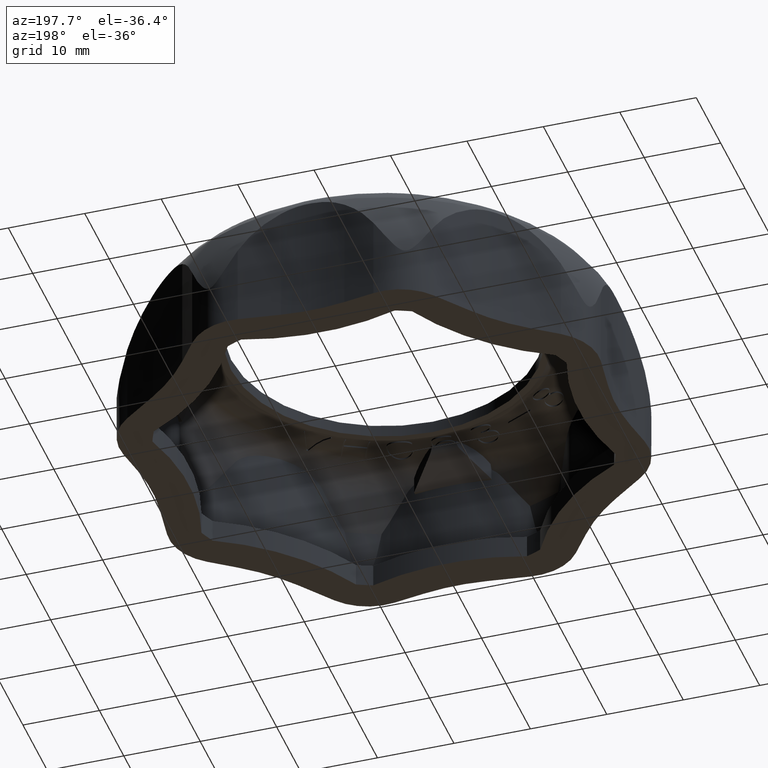
[diagram: clean part render]
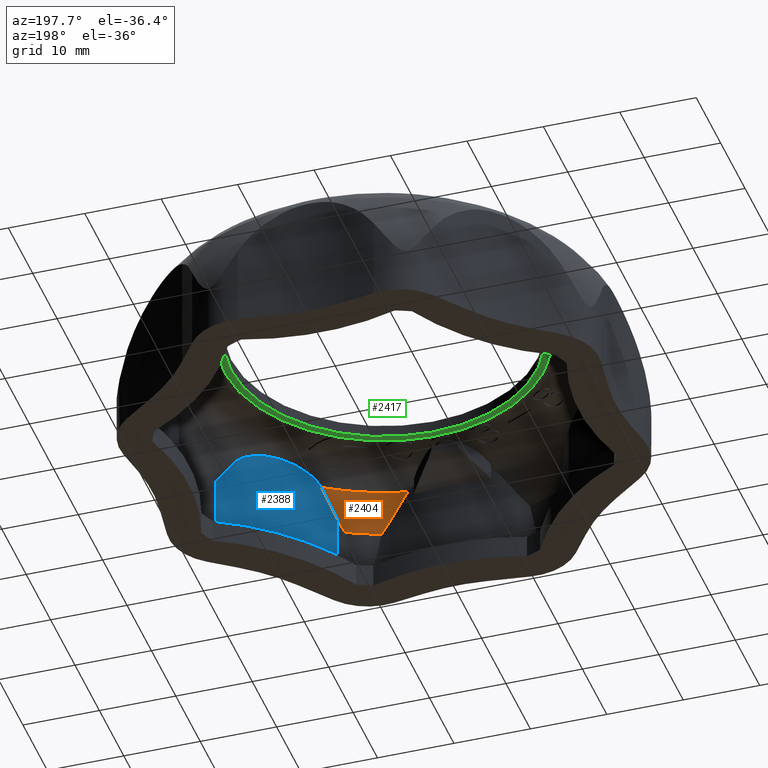
[diagram: same view with three faces highlighted in distinct colors, each labeled with its STEP entity id]
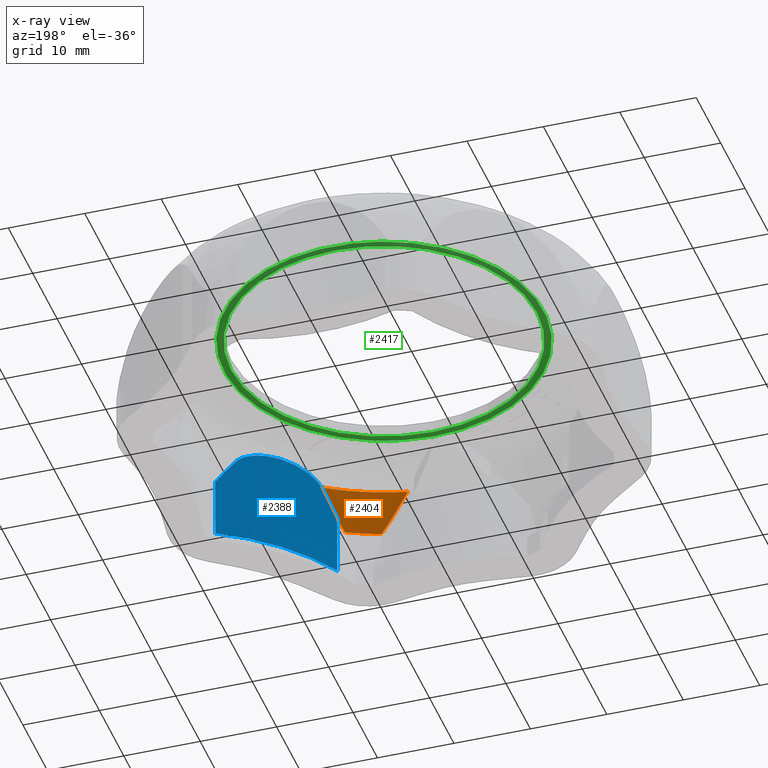
[diagram: x-ray of the same camera — body ghosted, the three highlighted faces saturated]
A machine part, auxiliary view with three faces highlighted in distinct colors.
The next image is the same camera in x-ray (body ghosted, the three faces saturated) — at least one of them is partly hidden behind the body in this view.
Their STEP definitions:

[orange] entity #2404 — the highlighted conical surface has half-angle 19.067 deg.
#2404 = ADVANCED_FACE( '', ( #7112 ), #7113, .F. );
#7112 = FACE_OUTER_BOUND( '', #11847, .T. );
#7113 = CONICAL_SURFACE( '', #11848, 31.0000000000000, 0.332788203392473 );
#11847 = EDGE_LOOP( '', ( #32815, #32816, #32817, #32818, #32819, #32820 ) );
#11848 = AXIS2_PLACEMENT_3D( '', #32821, #32822, #32823 );
#32815 = ORIENTED_EDGE( '', *, *, #39924, .T. );
#32816 = ORIENTED_EDGE( '', *, *, #33492, .T. );
#32817 = ORIENTED_EDGE( '', *, *, #39935, .T. );
#32818 = ORIENTED_EDGE( '', *, *, #39928, .T. );
#32819 = ORIENTED_EDGE( '', *, *, #39977, .F. );
#32820 = ORIENTED_EDGE( '', *, *, #39921, .T. );
#32821 = CARTESIAN_POINT( '', ( 0.000000000000000, 0.000000000000000, 9.49996116138760 ) );
#32822 = DIRECTION( '', ( -2.34318281388423E-017, 5.65694372839885E-017, -1.00000000000000 ) );
#32823 = DIRECTION( '', ( -0.382683432365090, 0.923879532511287, 6.12303176911189E-017 ) );
#33492 = EDGE_CURVE( '', #40832, #40830, #40833, .T. );
#39921 = EDGE_CURVE( '', #51487, #51485, #51488, .T. );
#39924 = EDGE_CURVE( '', #51485, #40832, #51492, .T. );
#39928 = EDGE_CURVE( '', #51498, #51495, #51499, .T. );
#39935 = EDGE_CURVE( '', #40830, #51498, #51511, .T. );
#39977 = EDGE_CURVE( '', #51487, #51495, #51577, .T. );
#40830 = VERTEX_POINT( '', #53919 );
#40832 = VERTEX_POINT( '', #53942 );
#40833 = CIRCLE( '', #53943, 29.2256761474118 );
#51485 = VERTEX_POINT( '', #80695 );
#51487 = VERTEX_POINT( '', #80698 );
#51488 = B_SPLINE_CURVE_WITH_KNOTS( '', 3, ( #80699, #80700, #80701, #80702, #80703, #80704 ), .UNSPECIFIED., .F., .F., ( 4, 2, 4 ), ( 2.74166396177416E-007, 0.000977178982280314, 0.00195408379816445 ), .UNSPECIFIED. );
#51492 = B_SPLINE_CURVE_WITH_KNOTS( '', 3, ( #80725, #80726, #80727, #80728, #80729, #80730 ), .UNSPECIFIED., .F., .F., ( 4, 2, 4 ), ( 4.77719126268167E-007, 0.00221967505390502, 0.00443887238868378 ), .UNSPECIFIED. );
#51495 = VERTEX_POINT( '', #80738 );
#51498 = VERTEX_POINT( '', #80758 );
#51499 = B_SPLINE_CURVE_WITH_KNOTS( '', 3, ( #80759, #80760, #80761, #80762, #80763, #80764 ), .UNSPECIFIED., .F., .F., ( 4, 2, 4 ), ( 4.76181368800909E-007, 0.000977735369371480, 0.00195499455737416 ), .UNSPECIFIED. );
#51511 = B_SPLINE_CURVE_WITH_KNOTS( '', 3, ( #80800, #80801, #80802, #80803, #80804, #80805 ), .UNSPECIFIED., .F., .F., ( 4, 2, 4 ), ( 2.64352324711938E-007, 0.00221910611919886, 0.00443794788607301 ), .UNSPECIFIED. );
#51577 = CIRCLE( '', #81044, 31.0000000000000 );
#53919 = CARTESIAN_POINT( '', ( 15.9889899921919, -24.4641030057265, 14.6333583801573 ) );
#53942 = CARTESIAN_POINT( '', ( 5.99281028186683, -28.6046564600756, 14.6333587349022 ) );
#53943 = AXIS2_PLACEMENT_3D( '', #81397, #81398, #81399 );
#80695 = CARTESIAN_POINT( '', ( 8.53978144138068, -29.2411382262603, 11.0546472186196 ) );
#80698 = CARTESIAN_POINT( '', ( 9.70607708918036, -29.4413326386373, 9.49996116138760 ) );
#80699 = CARTESIAN_POINT( '', ( 9.70607708918048, -29.4413326386372, 9.49996116138768 ) );
#80700 = CARTESIAN_POINT( '', ( 9.47922292302562, -29.4296666076683, 9.73751058986364 ) );
#80701 = CARTESIAN_POINT( '', ( 9.27304488831557, -29.4039861247977, 9.98876598832187 ) );
#80702 = CARTESIAN_POINT( '', ( 8.88761478499548, -29.3348699136893, 10.5091894918414 ) );
#80703 = CARTESIAN_POINT( '', ( 8.70860736771149, -29.2912619150065, 10.7785189436806 ) );
#80704 = CARTESIAN_POINT( '', ( 8.53978144138059, -29.2411382262603, 11.0546472186195 ) );
#80725 = CARTESIAN_POINT( '', ( 8.53978144138059, -29.2411382262603, 11.0546472186195 ) );
#80726 = CARTESIAN_POINT( '', ( 8.15755443070495, -29.1276380778461, 11.6798616485109 ) );
#80727 = CARTESIAN_POINT( '', ( 7.75871130698027, -29.0173923765390, 12.2938292476531 ) );
#80728 = CARTESIAN_POINT( '', ( 6.91530179891717, -28.8046622454202, 13.4906036877899 ) );
#80729 = CARTESIAN_POINT( '', ( 6.47101256302913, -28.7021472575901, 14.0736023397583 ) );
#80730 = CARTESIAN_POINT( '', ( 5.99281028186691, -28.6046564600755, 14.6333587349023 ) );
#80738 = CARTESIAN_POINT( '', ( 13.9549330274702, -27.6813988844280, 9.49996116138760 ) );
#80758 = CARTESIAN_POINT( '', ( 14.6382524279612, -26.7148075337736, 11.0552482217337 ) );
#80759 = CARTESIAN_POINT( '', ( 14.6382524279612, -26.7148075337737, 11.0552482217337 ) );
#80760 = CARTESIAN_POINT( '', ( 14.5543046027241, -26.8696799918379, 10.7790109106490 ) );
#80761 = CARTESIAN_POINT( '', ( 14.4585438454448, -27.0271462973678, 10.5095755642135 ) );
#80762 = CARTESIAN_POINT( '', ( 14.2348189297718, -27.3486707104623, 9.98894991275362 ) );
#80763 = CARTESIAN_POINT( '', ( 14.1071500261428, -27.5126775536838, 9.73759802960910 ) );
#80764 = CARTESIAN_POINT( '', ( 13.9549330274703, -27.6813988844281, 9.49996116138765 ) );
#80800 = CARTESIAN_POINT( '', ( 15.9889897511657, -24.4641033701943, 14.6333587004009 ) );
#80801 = CARTESIAN_POINT( '', ( 15.7198294804467, -24.8711142219835, 14.0736925458682 ) );
#80802 = CARTESIAN_POINT( '', ( 15.4781931002338, -25.2577042869453, 13.4907911428942 ) );
#80803 = CARTESIAN_POINT( '', ( 15.0322945678605, -26.0043969139999, 12.2942185350456 ) );
#80804 = CARTESIAN_POINT( '', ( 14.8282498495235, -26.3643252295236, 11.6803556451684 ) );
#80805 = CARTESIAN_POINT( '', ( 14.6382524279612, -26.7148075337737, 11.0552482217337 ) );
#81044 = AXIS2_PLACEMENT_3D( '', #83703, #83704, #83705 );
#81397 = CARTESIAN_POINT( '', ( 0.000000000000000, 0.000000000000000, 14.6333587349022 ) );
#81398 = DIRECTION( '', ( 2.34318281388423E-017, -5.65694372839885E-017, 1.00000000000000 ) );
#81399 = DIRECTION( '', ( 0.382683432365090, -0.923879532511287, -6.12303176911189E-017 ) );
#83703 = CARTESIAN_POINT( '', ( 0.000000000000000, 0.000000000000000, 9.49996116138760 ) );
#83704 = DIRECTION( '', ( 2.34318281388423E-017, -5.65694372839885E-017, 1.00000000000000 ) );
#83705 = DIRECTION( '', ( 0.382683432365090, -0.923879532511287, -6.12303176911189E-017 ) );

[blue] entity #2388 — the highlighted cylindrical surface (partial cylindrical patch) has radius 30 mm, axis along (0, 0, -1).
#2388 = ADVANCED_FACE( '', ( #7080 ), #7081, .T. );
#7080 = FACE_OUTER_BOUND( '', #11815, .T. );
#7081 = CYLINDRICAL_SURFACE( '', #11816, 30.0000000000000 );
#11815 = EDGE_LOOP( '', ( #32677, #32678, #32679, #32680, #32681, #32682 ) );
#11816 = AXIS2_PLACEMENT_3D( '', #32683, #32684, #32685 );
#32677 = ORIENTED_EDGE( '', *, *, #39929, .T. );
#32678 = ORIENTED_EDGE( '', *, *, #39935, .F. );
#32679 = ORIENTED_EDGE( '', *, *, #33491, .F. );
#32680 = ORIENTED_EDGE( '', *, *, #39936, .F. );
#32681 = ORIENTED_EDGE( '', *, *, #39931, .F. );
#32682 = ORIENTED_EDGE( '', *, *, #39937, .F. );
#32683 = CARTESIAN_POINT( '', ( 41.0121932812772, -41.0121934439948, -89.6687766675985 ) );
#32684 = DIRECTION( '', ( 0.000000000000000, 0.000000000000000, -1.00000000000000 ) );
#32685 = DIRECTION( '', ( -0.879131361803197, 0.476579530292747, 0.000000000000000 ) );
#33491 = EDGE_CURVE( '', #40828, #40830, #40831, .T. );
#39929 = EDGE_CURVE( '', #51500, #51498, #51501, .T. );
#39931 = EDGE_CURVE( '', #51503, #51504, #51505, .T. );
#39935 = EDGE_CURVE( '', #40830, #51498, #51511, .T. );
#39936 = EDGE_CURVE( '', #51504, #40828, #51512, .T. );
#39937 = EDGE_CURVE( '', #51500, #51503, #51513, .F. );
#40828 = VERTEX_POINT( '', #53917 );
#40830 = VERTEX_POINT( '', #53919 );
#40831 = B_SPLINE_CURVE_WITH_KNOTS( '', 3, ( #53920, #53921, #53922, #53923, #53924, #53925, #53926, #53927, #53928, #53929, #53930, #53931, #53932, #53933, #53934, #53935, #53936, #53937, #53938, #53939, #53940, #53941 ), .UNSPECIFIED., .F., .F., ( 4, 2, 2, 2, 2, 2, 2, 2, 2, 2, 4 ), ( 2.58774998028080E-007, 0.000810441572573044, 0.00162062437014806, 0.00324098996529811, 0.00486135556044816, 0.00648172115559821, 0.00810208675074825, 0.00972245234589830, 0.0113428179410483, 0.0121530007386234, 0.0129631835361984 ), .UNSPECIFIED. );
#51498 = VERTEX_POINT( '', #80758 );
#51500 = VERTEX_POINT( '', #80765 );
#51501 = LINE( '', #80766, #80767 );
#51503 = VERTEX_POINT( '', #80769 );
#51504 = VERTEX_POINT( '', #80770 );
#51505 = LINE( '', #80771, #80772 );
#51511 = B_SPLINE_CURVE_WITH_KNOTS( '', 3, ( #80800, #80801, #80802, #80803, #80804, #80805 ), .UNSPECIFIED., .F., .F., ( 4, 2, 4 ), ( 2.64352324711938E-007, 0.00221910611919886, 0.00443794788607301 ), .UNSPECIFIED. );
#51512 = B_SPLINE_CURVE_WITH_KNOTS( '', 3, ( #80806, #80807, #80808, #80809, #80810, #80811 ), .UNSPECIFIED., .F., .F., ( 4, 2, 4 ), ( 3.73065794315944E-007, 0.00221939328282444, 0.00443841349985456 ), .UNSPECIFIED. );
#51513 = CIRCLE( '', #80812, 30.0000000000000 );
#53917 = CARTESIAN_POINT( '', ( 24.4641032816665, -15.9889898648209, 14.6333587349022 ) );
#53919 = CARTESIAN_POINT( '', ( 15.9889899921919, -24.4641030057265, 14.6333583801573 ) );
#53920 = CARTESIAN_POINT( '', ( 24.4641030059786, -15.9889900471360, 14.6333582925805 ) );
#53921 = CARTESIAN_POINT( '', ( 24.3126542697343, -16.0891445844949, 14.8416101258670 ) );
#53922 = CARTESIAN_POINT( '', ( 24.1447429859492, -16.2021925496924, 15.0219174914236 ) );
#53923 = CARTESIAN_POINT( '', ( 23.7878546372470, -16.4486191495968, 15.3438492784023 ) );
#53924 = CARTESIAN_POINT( '', ( 23.5986889320170, -16.5821107170195, 15.4851800588576 ) );
#53925 = CARTESIAN_POINT( '', ( 23.0083711798628, -17.0101374317516, 15.8630481201040 ) );
#53926 = CARTESIAN_POINT( '', ( 22.6013436747329, -17.3201229617827, 16.0447386017431 ) );
#53927 = CARTESIAN_POINT( '', ( 21.7866335450605, -17.9763205541288, 16.3223891475006 ) );
#53928 = CARTESIAN_POINT( '', ( 21.3746301601082, -18.3261818668718, 16.4179799999833 ) );
#53929 = CARTESIAN_POINT( '', ( 20.5744424783547, -19.0443226156033, 16.5415754518434 ) );
#53930 = CARTESIAN_POINT( '', ( 20.1841237753705, -19.4140241696660, 16.5704339725227 ) );
#53931 = CARTESIAN_POINT( '', ( 19.4231737797740, -20.1746400293264, 16.5709136922062 ) );
#53932 = CARTESIAN_POINT( '', ( 19.0525407897077, -20.5655522572035, 16.5425512194849 ) );
#53933 = CARTESIAN_POINT( '', ( 18.3310788741508, -21.3689115740340, 16.4192535407734 ) );
#53934 = CARTESIAN_POINT( '', ( 17.9828347726242, -21.7787922253770, 16.3245513795184 ) );
#53935 = CARTESIAN_POINT( '', ( 17.3246153351547, -22.5955236363785, 16.0472236984881 ) );
#53936 = CARTESIAN_POINT( '', ( 17.0103666644736, -23.0081953588617, 15.8625892635607 ) );
#53937 = CARTESIAN_POINT( '', ( 16.5864956561131, -23.5925722505763, 15.4893766407777 ) );
#53938 = CARTESIAN_POINT( '', ( 16.4526218833678, -23.7821050152569, 15.3486963982795 ) );
#53939 = CARTESIAN_POINT( '', ( 16.2023274704836, -24.1445008643456, 15.0224697825673 ) );
#53940 = CARTESIAN_POINT( '', ( 16.0885271509535, -24.3135878409825, 14.8403264781931 ) );
#53941 = CARTESIAN_POINT( '', ( 15.9889899921912, -24.4641030057272, 14.6333583801584 ) );
#80758 = CARTESIAN_POINT( '', ( 14.6382524279612, -26.7148075337736, 11.0552482217337 ) );
#80765 = CARTESIAN_POINT( '', ( 14.6382524279612, -26.7148075337736, 2.99996116138760 ) );
#80766 = CARTESIAN_POINT( '', ( 14.6382524279612, -26.7148075337736, -89.6687766675985 ) );
#80767 = VECTOR( '', #83641, 1000.00000000000 );
#80769 = CARTESIAN_POINT( '', ( 26.7149765751233, -14.6381608583741, 2.99996116138760 ) );
#80770 = CARTESIAN_POINT( '', ( 26.7149765811010, -14.6381608551334, 11.0549466190553 ) );
#80771 = CARTESIAN_POINT( '', ( 26.7149765780630, -14.6381608637971, -89.6687766675985 ) );
#80772 = VECTOR( '', #83645, 1000.00000000000 );
#80800 = CARTESIAN_POINT( '', ( 15.9889897511657, -24.4641033701943, 14.6333587004009 ) );
#80801 = CARTESIAN_POINT( '', ( 15.7198294804467, -24.8711142219835, 14.0736925458682 ) );
#80802 = CARTESIAN_POINT( '', ( 15.4781931002338, -25.2577042869453, 13.4907911428942 ) );
#80803 = CARTESIAN_POINT( '', ( 15.0322945678605, -26.0043969139999, 12.2942185350456 ) );
#80804 = CARTESIAN_POINT( '', ( 14.8282498495235, -26.3643252295236, 11.6803556451684 ) );
#80805 = CARTESIAN_POINT( '', ( 14.6382524279612, -26.7148075337737, 11.0552482217337 ) );
#80806 = CARTESIAN_POINT( '', ( 26.7149765783859, -14.6381608636220, 11.0549466141431 ) );
#80807 = CARTESIAN_POINT( '', ( 26.3644692737260, -14.8281689283879, 11.6801078127966 ) );
#80808 = CARTESIAN_POINT( '', ( 26.0045149104681, -15.0322259466824, 12.2940232937338 ) );
#80809 = CARTESIAN_POINT( '', ( 25.2577666270633, -15.4781541622819, 13.4906971999408 ) );
#80810 = CARTESIAN_POINT( '', ( 24.8711470124543, -15.7198078526319, 14.0736473732493 ) );
#80811 = CARTESIAN_POINT( '', ( 24.4641032816666, -15.9889898648208, 14.6333587349023 ) );
#80812 = AXIS2_PLACEMENT_3D( '', #83649, #83650, #83651 );
#83641 = DIRECTION( '', ( 0.000000000000000, 0.000000000000000, 1.00000000000000 ) );
#83645 = DIRECTION( '', ( 0.000000000000000, 0.000000000000000, 1.00000000000000 ) );
#83649 = CARTESIAN_POINT( '', ( 41.0121932812772, -41.0121934439948, 2.99996116138760 ) );
#83650 = DIRECTION( '', ( 2.34318281388423E-017, -5.65694372839885E-017, 1.00000000000000 ) );
#83651 = DIRECTION( '', ( 0.382683432365090, -0.923879532511287, -6.12303176911189E-017 ) );

[green] entity #2417 — the highlighted planar face has unit normal (-0, 0, -1).
#2417 = ADVANCED_FACE( '', ( #7139, #7140 ), #7141, .T. );
#7139 = FACE_OUTER_BOUND( '', #11874, .T. );
#7140 = FACE_BOUND( '', #11875, .T. );
#7141 = PLANE( '', #11876 );
#11874 = EDGE_LOOP( '', ( #32958 ) );
#11875 = EDGE_LOOP( '', ( #32959 ) );
#11876 = AXIS2_PLACEMENT_3D( '', #32960, #32961, #32962 );
#32958 = ORIENTED_EDGE( '', *, *, #34729, .F. );
#32959 = ORIENTED_EDGE( '', *, *, #39989, .T. );
#32960 = CARTESIAN_POINT( '', ( -19.3361389585016, -8.00929100054213, 16.4999612556509 ) );
#32961 = DIRECTION( '', ( -2.34318281388423E-017, 5.65694372839885E-017, -1.00000000000000 ) );
#32962 = DIRECTION( '', ( -0.382683432365090, 0.923879532511287, 6.12303176911189E-017 ) );
#34729 = EDGE_CURVE( '', #43302, #43302, #43303, .T. );
#39989 = EDGE_CURVE( '', #51589, #51589, #51590, .T. );
#43302 = VERTEX_POINT( '', #60386 );
#43303 = CIRCLE( '', #60387, 20.9292859705216 );
#51589 = VERTEX_POINT( '', #81056 );
#51590 = CIRCLE( '', #81057, 20.0000000000000 );
#60386 = CARTESIAN_POINT( '', ( 8.00929099214973, -19.3361389382405, 16.4999613499142 ) );
#60387 = AXIS2_PLACEMENT_3D( '', #81406, #81407, #81408 );
#81056 = CARTESIAN_POINT( '', ( 7.65366864730180, -18.4775906502257, 16.4999611613876 ) );
#81057 = AXIS2_PLACEMENT_3D( '', #83739, #83740, #83741 );
#81406 = CARTESIAN_POINT( '', ( 0.000000000000000, 0.000000000000000, 16.4999613499142 ) );
#81407 = DIRECTION( '', ( 2.34318281388423E-017, -5.65694372839885E-017, 1.00000000000000 ) );
#81408 = DIRECTION( '', ( 0.382683432365090, -0.923879532511287, -6.12303176911189E-017 ) );
#83739 = CARTESIAN_POINT( '', ( 0.000000000000000, 0.000000000000000, 16.4999611613876 ) );
#83740 = DIRECTION( '', ( 2.34318281388423E-017, -5.65694372839885E-017, 1.00000000000000 ) );
#83741 = DIRECTION( '', ( 0.382683432365090, -0.923879532511287, -6.12303176911189E-017 ) );